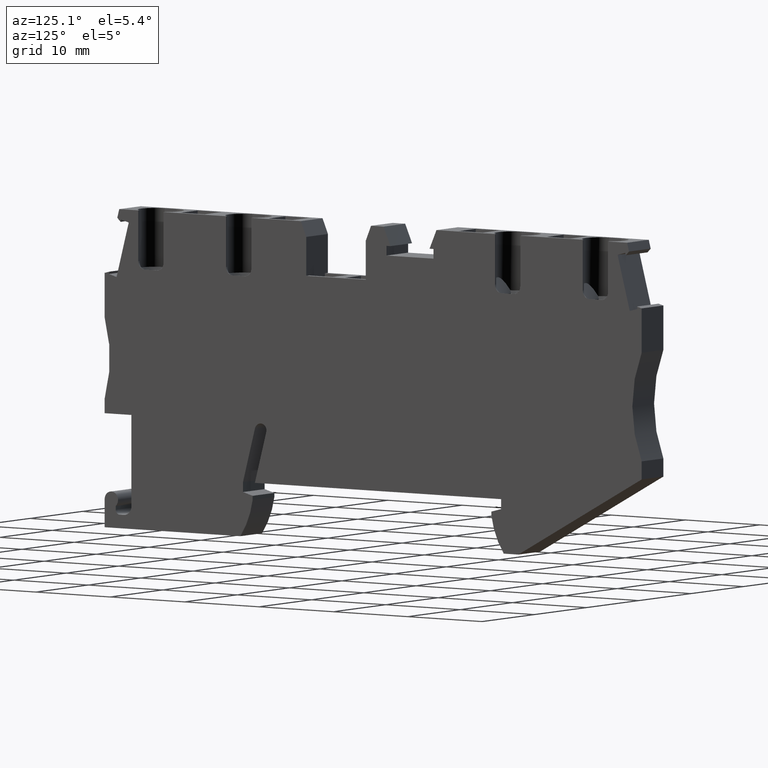
[diagram: clean part render]
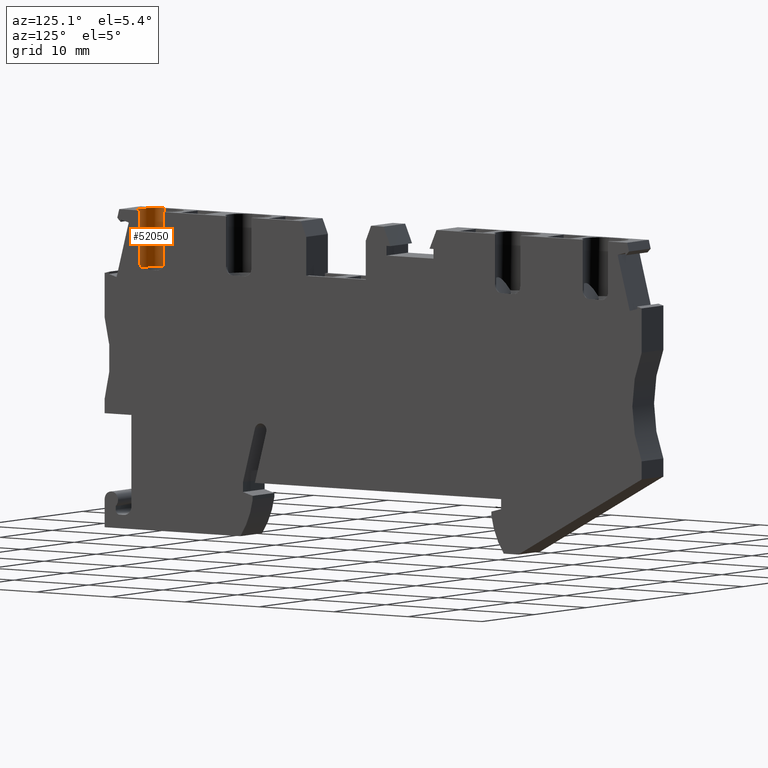
[diagram: same view with one face highlighted and labeled with its STEP entity id]
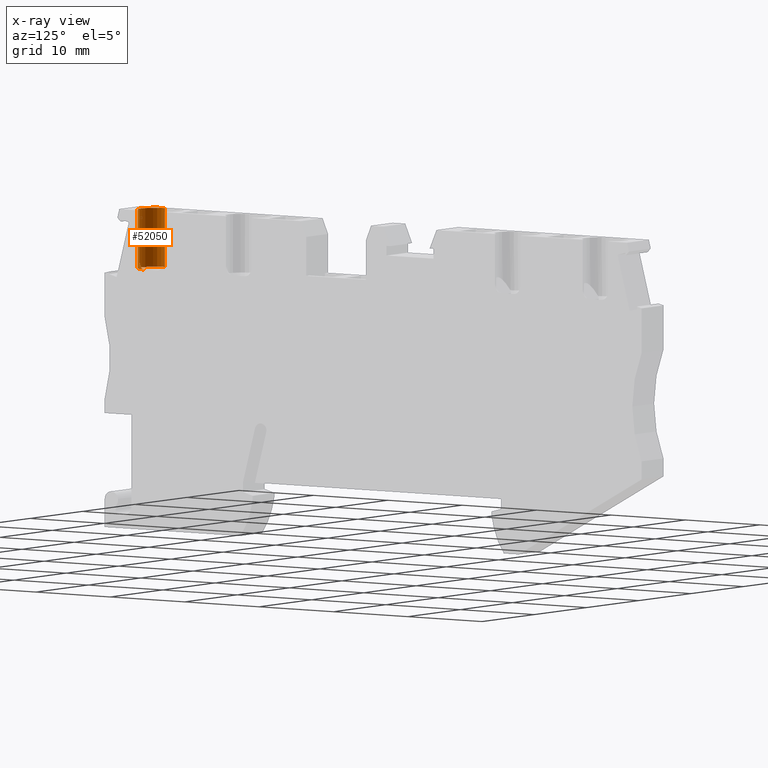
[diagram: x-ray of the same camera — body ghosted, the highlighted face saturated]
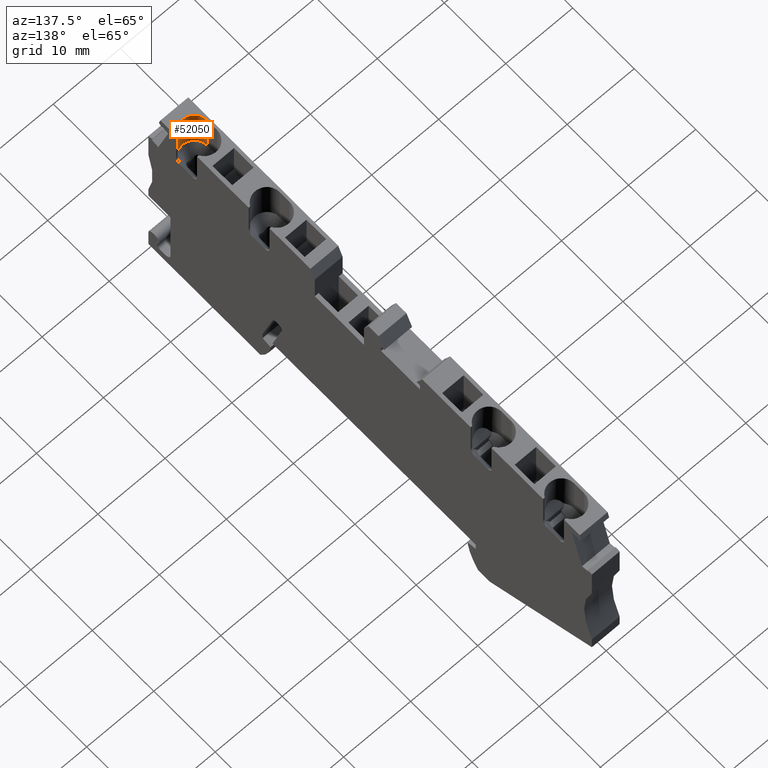
[diagram: same view with one face highlighted and labeled with its STEP entity id]
A machine part, auxiliary view. The second image highlights one B-rep face of the part: STEP entity #52050.
The next image is the same camera in x-ray: the body ghosted, the highlighted face saturated — about 0% of this face is hidden behind the body in this view.
A second angle (auxiliary view) of the same face is appended — the face is thin or edge-on in the first view.
In plain terms, the highlighted cylindrical surface (edge-blend (fillet) strip) has radius 1.9 mm, axis along (-0, 0, 1).
Its self-contained STEP definition (entity closure, byte-faithful):
#2600=CARTESIAN_POINT('',(2.73061637708641,23.0870258504544,
4.44089209850063E-16));
#2610=VERTEX_POINT('',#2600);
#36060=CARTESIAN_POINT('',(1.93846564495341,29.5385758361251,
-3.79999999999999));
#36070=VERTEX_POINT('',#36060);
#36100=CARTESIAN_POINT('',(1.93846564495346,29.5385758361251,
-1.89999999999999));
#36110=DIRECTION('',(0.121869343405031,-0.992546151641336,
6.8651698797631E-30));
#36120=DIRECTION('',(0.992546151641336,0.121869343405031,
-6.12323399573707E-17));
#36130=AXIS2_PLACEMENT_3D('',#36100,#36110,#36120);
#36140=CIRCLE('',#36130,1.9);
#36150=CARTESIAN_POINT('',(1.04517410847594,29.4288934270606,
-0.226679946932007));
#36160=VERTEX_POINT('',#36150);
#36170=EDGE_CURVE('',#36160,#36070,#36140,.T.);
#45480=CARTESIAN_POINT('',(1.9384656449536,29.5385758361236,
-3.79999999999998));
#45490=DIRECTION('',(0.121869343405022,-0.992546151641337,
-1.35662505282565E-30));
#45500=VECTOR('',#45490,1.);
#45510=LINE('',#45480,#45500);
#45520=CARTESIAN_POINT('',(2.73061637708631,23.0870258504544,
-3.79999999999995));
#45530=VERTEX_POINT('',#45520);
#45540=EDGE_CURVE('',#36070,#45530,#45510,.T.);
#50000=CARTESIAN_POINT('',(2.73061637708614,23.0870258504546,
-1.89999999999999));
#50010=DIRECTION('',(0.121869343405147,-0.992546151641323,
-4.11763822109946E-31));
#50020=DIRECTION('',(-4.80689802786436E-32,3.91490427828702E-31,-1.));
#50030=AXIS2_PLACEMENT_3D('',#50000,#50010,#50020);
#50040=CIRCLE('',#50030,1.90000000000001);
#50050=EDGE_CURVE('',#2610,#45530,#50040,.T.);
#51090=CARTESIAN_POINT('',(1.93846564495368,29.5385758361233,
-1.89999999999999));
#51100=DIRECTION('',(-0.121869343405031,0.992546151641337,
-6.8651698797631E-30));
#51110=DIRECTION('',(0.992546151641337,0.121869343405031,
-6.12323399573707E-17));
#51120=AXIS2_PLACEMENT_3D('',#51090,#51100,#51110);
#51130=CYLINDRICAL_SURFACE('',#51120,1.9);
#51140=ORIENTED_EDGE('',*,*,#50050,.T.);
#51150=CARTESIAN_POINT('',(2.62093396802218,23.9803173869318,
-5.32907051820075E-15));
#51160=DIRECTION('',(4.80689802786436E-32,-3.91490427828702E-31,1.));
#51170=DIRECTION('',(-0.992546151641322,-0.121869343405147,0.));
#51180=AXIS2_PLACEMENT_3D('',#51150,#51160,#51170);
#51190=CYLINDRICAL_SURFACE('',#51180,0.9);
#51200=CARTESIAN_POINT('',(1.93846564495368,29.5385758361233,
-1.89999999999999));
#51210=DIRECTION('',(-0.121869343405031,0.992546151641337,
-6.8651698797631E-30));
#51220=DIRECTION('',(0.992546151641337,0.121869343405031,
-6.12323399573707E-17));
#51230=AXIS2_PLACEMENT_3D('',#51200,#51210,#51220);
#51240=CYLINDRICAL_SURFACE('',#51230,1.9);
#51250=CARTESIAN_POINT('',(1.72764243154499,23.8706349778672,
-0.226679946931658));
#51260=CARTESIAN_POINT('',(1.7312717898307,23.8410762266772,
-0.226679946931656));
#51270=CARTESIAN_POINT('',(1.73637203085911,23.8116571470532,
-0.22588301592714));
#51280=CARTESIAN_POINT('',(1.74295313972531,23.7824546437407,
-0.224294063483321));
#51290=CARTESIAN_POINT('',(1.7462421125456,23.7678604102107,
-0.223499969128296));
#51300=CARTESIAN_POINT('',(1.74989809274213,23.7533357766371,
-0.222509053992937));
#51310=CARTESIAN_POINT('',(1.75391387184952,23.7389128450675,
-0.22132777059177));
#51320=CARTESIAN_POINT('',(1.75792964178221,23.7244899464494,
-0.220146489889435));
#51330=CARTESIAN_POINT('',(1.76230510589467,23.7101691598093,
-0.218774885820545));
#51340=CARTESIAN_POINT('',(1.76702912802179,23.6959821548133,
-0.217223192072561));
#51350=CARTESIAN_POINT('',(1.77175315054771,23.6817951486196,
-0.215671498193581));
#51360=CARTESIAN_POINT('',(1.7768255997764,23.6677422994402,
-0.213939781658725));
#51370=CARTESIAN_POINT('',(1.7822317604132,23.6538535957515,
-0.212041660831168));
#51380=CARTESIAN_POINT('',(1.78763793313378,23.6399648610191,
-0.210143535760954));
#51390=CARTESIAN_POINT('',(1.79337766980279,23.626240599407,
-0.208079088227611));
#51400=CARTESIAN_POINT('',(1.7994332533173,23.6127081164566,
-0.205864713126312));
#51410=CARTESIAN_POINT('',(1.81155169370798,23.5856268966898,
-0.201433303237669));
#51420=CARTESIAN_POINT('',(1.82489947915318,23.5593831797912,
-0.19641431115648));
#51430=CARTESIAN_POINT('',(1.83941384652247,23.5339696528824,
-0.19092156201226));
#51440=CARTESIAN_POINT('',(1.85395101627054,23.5085162007842,
-0.185420183642712));
#51450=CARTESIAN_POINT('',(1.86974332821233,23.4837570813563,
-0.179411132796088));
#51460=CARTESIAN_POINT('',(1.88669788616629,23.4598393604014,
-0.173028825286704));
#51470=CARTESIAN_POINT('',(1.90365224009183,23.4359219272685,
-0.166646594580982));
#51480=CARTESIAN_POINT('',(1.92176640094887,23.4128496536583,
-0.15989267719446));
#51490=CARTESIAN_POINT('',(1.94091984523424,23.3907575572201,
-0.152917368613969));
#51500=CARTESIAN_POINT('',(1.96007332112955,23.3686654243222,
-0.145942048521754));
#51510=CARTESIAN_POINT('',(1.98026340565992,23.3475564934996,
-0.138746932153587));
#51520=CARTESIAN_POINT('',(2.00134866897693,23.3275432627454,
-0.13148600514134));
#51530=CARTESIAN_POINT('',(2.0224423850883,23.3075220089601,
-0.124222167322527));
#51540=CARTESIAN_POINT('',(2.04439019615429,23.2886303146492,
-0.116906387565232));
#51550=CARTESIAN_POINT('',(2.06715131120977,23.2708635343003,
-0.109648904505693));
#51560=CARTESIAN_POINT('',(2.08994672364112,23.2530699822425,
-0.102380485574876));
#51570=CARTESIAN_POINT('',(2.1136926176644,23.2363055412687,
-0.0951282021296362));
#51580=CARTESIAN_POINT('',(2.13826254448319,23.2206936005083,
-0.088034775685769));
#51590=CARTESIAN_POINT('',(2.1628323387577,23.2050817439676,
-0.0809413875079145));
#51600=CARTESIAN_POINT('',(2.18822283751893,23.1906247048137,
-0.0740083016734727));
#51610=CARTESIAN_POINT('',(2.21428467982698,23.1774248932486,
-0.0673702820105404));
#51620=CARTESIAN_POINT('',(2.24034672227003,23.1642249803191,
-0.0607322113726954));
#51630=CARTESIAN_POINT('',(2.26707601367967,23.1522842878638,
-0.0543905809896073));
#51640=CARTESIAN_POINT('',(2.29431114792553,23.1416770984934,
-0.0484630140226946));
#51650=CARTESIAN_POINT('',(2.32151928792408,23.1310804224948,
-0.0425413221951246));
#51660=CARTESIAN_POINT('',(2.34931345611108,23.1217776678009,
-0.0370132038679437));
#51670=CARTESIAN_POINT('',(2.37768125198571,23.1138140019754,
-0.0319626837607648));
#51680=CARTESIAN_POINT('',(2.39185744432637,23.1098343322479,
-0.029438795589258));
#51690=CARTESIAN_POINT('',(2.4061602636708,23.1061946783989,
-0.0270373487750622));
#51700=CARTESIAN_POINT('',(2.42056289064312,23.1029056071214,
-0.0247714823037086));
#51710=CARTESIAN_POINT('',(2.4349655201545,23.0996165352641,
-0.0225056154329036));
#51720=CARTESIAN_POINT('',(2.44946769924967,23.0966781071776,
-0.0203753809525573));
#51730=CARTESIAN_POINT('',(2.46404168530762,23.0940979944422,
-0.0183919912022169));
#51740=CARTESIAN_POINT('',(2.47861569884703,23.0915178768417,
-0.0164085977118941));
#51750=CARTESIAN_POINT('',(2.49326124489122,23.0892961154128,
-0.0145720912165268));
#51760=CARTESIAN_POINT('',(2.50795054547198,23.0874373579084,
-0.0128915076455055));
#51770=CARTESIAN_POINT('',(2.52263828003087,23.0855787985656,
-0.0112111032409868));
#51780=CARTESIAN_POINT('',(2.53736621534432,23.0840824242478,
-0.00968646713475681));
#51790=CARTESIAN_POINT('',(2.55217802449705,23.0829475522316,
-0.00831917321755978));
#51800=CARTESIAN_POINT('',(2.56698435313896,23.0818131001288,
-0.0069523852121669));
#51810=CARTESIAN_POINT('',(2.58184970746037,23.0810430384056,
-0.005745675975656));
#51820=CARTESIAN_POINT('',(2.59674175176416,23.0806425919795,
-0.00470676944014127));
#51830=CARTESIAN_POINT('',(2.61163378185391,23.0802421459356,
-0.00366786389623362));
#51840=CARTESIAN_POINT('',(2.62655213441648,23.0802113331076,
-0.0027967966406089));
#51850=CARTESIAN_POINT('',(2.64146374615194,23.0805515683935,
-0.00209863366501356));
#51860=CARTESIAN_POINT('',(2.67129971775052,23.0812323298368,
-0.000701710845361639));
#51870=CARTESIAN_POINT('',(2.70105275906228,23.0833958945968,
2.06288612588559E-14));
#51880=CARTESIAN_POINT('',(2.73061637708682,23.0870258504547,
1.37667655045248E-14));
#51890=B_SPLINE_CURVE_WITH_KNOTS('',3,(#51250,#51260,#51270,#51280,
#51290,#51300,#51310,#51320,#51330,#51340,#51350,#51360,#51370,#51380,
#51390,#51400,#51410,#51420,#51430,#51440,#51450,#51460,#51470,#51480,
#51490,#51500,#51510,#51520,#51530,#51540,#51550,#51560,#51570,#51580,
#51590,#51600,#51610,#51620,#51630,#51640,#51650,#51660,#51670,#51680,
#51690,#51700,#51710,#51720,#51730,#51740,#51750,#51760,#51770,#51780,
#51790,#51800,#51810,#51820,#51830,#51840,#51850,#51860,#51870,#51880),
.UNSPECIFIED.,.F.,.F.,(4,3,3,3,3,3,3,3,3,3,3,3,3,3,3,3,3,3,3,3,3,4),(0.,
0.0895788511444207,0.134582790838447,0.179665188387791,0.224757201744881
,0.269784774797864,0.359387704760113,0.449153773255527,0.539282471610823
,0.629355195121349,0.718939245101819,0.808644017449823,0.898559331037045
,0.988259223927229,1.07773521034498,1.12256809554552,1.1673914867247,
1.21214722175975,1.25684186908474,1.30161661826654,1.34642026162068,
1.43587721706197),.UNSPECIFIED.);
#51900=SURFACE_CURVE('',#51890,(#51190,#51240),.CURVE_3D.);
#51910=CARTESIAN_POINT('',(1.727642431545,23.8706349778672,
-0.226679946931626));
#51920=VERTEX_POINT('',#51910);
#51930=EDGE_CURVE('',#51920,#2610,#51900,.T.);
#51940=ORIENTED_EDGE('',*,*,#51930,.T.);
#51950=CARTESIAN_POINT('',(1.04517410847612,29.4288934270588,
-0.226679946932027));
#51960=DIRECTION('',(-0.121869343405031,0.992546151641336,
-6.86516987976346E-30));
#51970=VECTOR('',#51960,1.);
#51980=LINE('',#51950,#51970);
#51990=EDGE_CURVE('',#51920,#36160,#51980,.T.);
#52000=ORIENTED_EDGE('',*,*,#51990,.F.);
#52010=ORIENTED_EDGE('',*,*,#36170,.F.);
#52020=ORIENTED_EDGE('',*,*,#45540,.F.);
#52030=EDGE_LOOP('',(#52020,#52010,#52000,#51940,#51140));
#52040=FACE_OUTER_BOUND('',#52030,.T.);
#52050=ADVANCED_FACE('',(#52040),#51130,.F.);